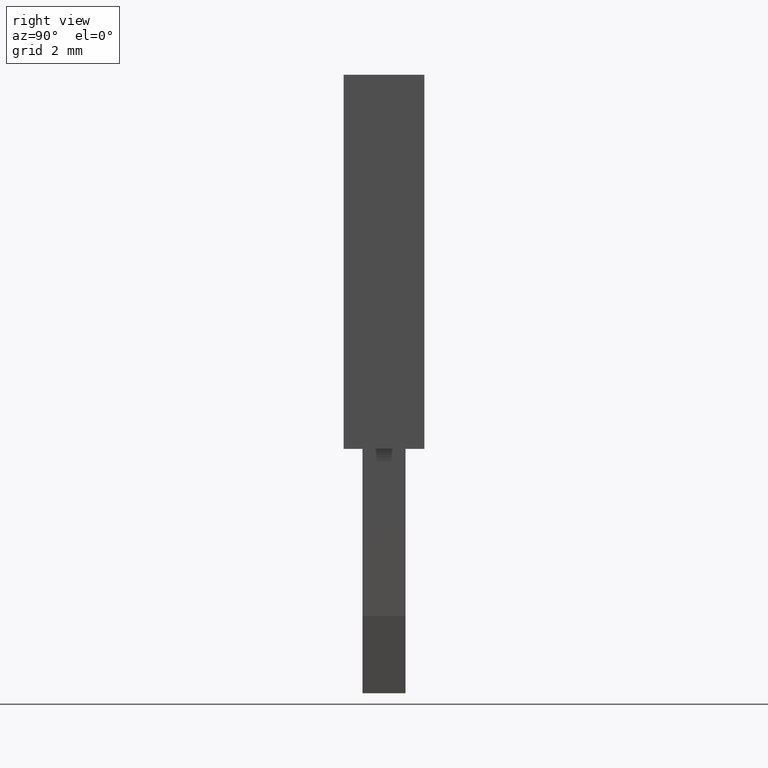
[diagram: clean part render]
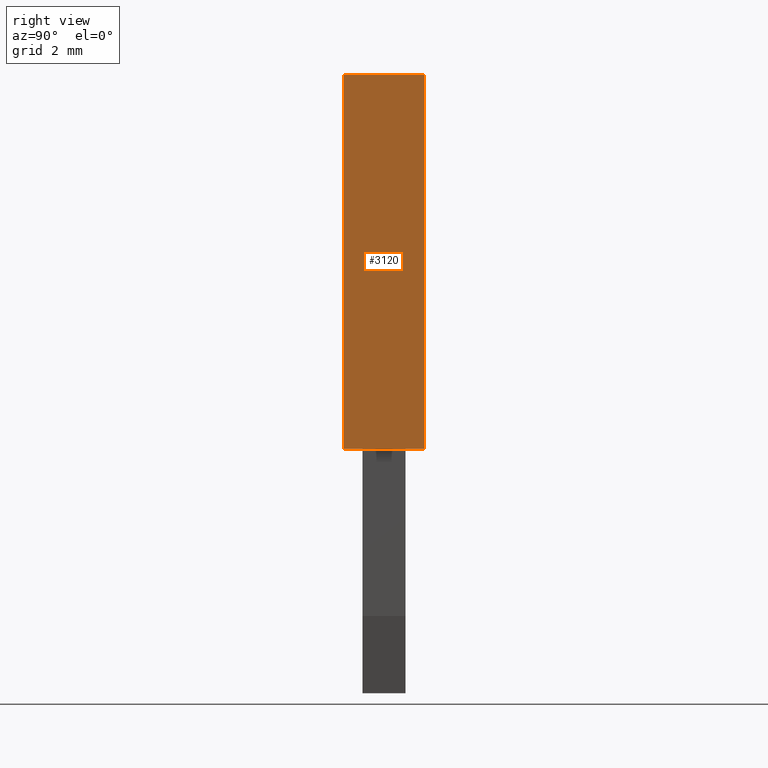
[diagram: same view with one face highlighted and labeled with its STEP entity id]
A machine part, right view. The second image highlights one B-rep face of the part: STEP entity #3120.
In plain terms, the highlighted planar face has unit normal (1, 0, -0).
Its self-contained STEP definition (entity closure, byte-faithful):
#440=CARTESIAN_POINT('',(2.60716722168536,-22.7749999999985,
44.1599999999987));
#450=VERTEX_POINT('',#440);
#500=CARTESIAN_POINT('',(2.60716722168536,-12.005123999997,
44.1599999999987));
#510=DIRECTION('',(0.,-1.,0.));
#520=VECTOR('',#510,1.);
#530=LINE('',#500,#520);
#540=CARTESIAN_POINT('',(2.60716722168536,-8.87499999999744,
44.1599999999987));
#550=VERTEX_POINT('',#540);
#560=EDGE_CURVE('',#550,#450,#530,.T.);
#2230=CARTESIAN_POINT('',(5.60716722168537,-8.87499999999744,
44.1599999999987));
#2240=VERTEX_POINT('',#2230);
#2270=CARTESIAN_POINT('',(5.60716722168536,-12.005123999997,
44.1599999999987));
#2280=DIRECTION('',(0.,1.,0.));
#2290=VECTOR('',#2280,1.);
#2300=LINE('',#2270,#2290);
#2310=CARTESIAN_POINT('',(5.60716722168537,-22.7749999999985,
44.1599999999987));
#2320=VERTEX_POINT('',#2310);
#2330=EDGE_CURVE('',#2320,#2240,#2300,.T.);
#2910=CARTESIAN_POINT('',(5.60716722168536,-22.4749999999974,
44.1599999999987));
#2920=DIRECTION('',(-0.,-0.,-1.));
#2930=DIRECTION('',(0.,-1.,0.));
#2940=AXIS2_PLACEMENT_3D('',#2910,#2920,#2930);
#2950=PLANE('',#2940);
#2960=CARTESIAN_POINT('',(5.60716722168535,-22.7749999999985,
44.1599999999987));
#2970=DIRECTION('',(-1.,-3.56818802108822E-17,0.));
#2980=VECTOR('',#2970,1.);
#2990=LINE('',#2960,#2980);
#3000=EDGE_CURVE('',#2320,#450,#2990,.T.);
#3010=ORIENTED_EDGE('',*,*,#3000,.T.);
#3020=ORIENTED_EDGE('',*,*,#2330,.F.);
#3030=CARTESIAN_POINT('',(5.60716722168535,-8.87499999999744,
44.1599999999987));
#3040=DIRECTION('',(1.,0.,0.));
#3050=VECTOR('',#3040,1.);
#3060=LINE('',#3030,#3050);
#3070=EDGE_CURVE('',#550,#2240,#3060,.T.);
#3080=ORIENTED_EDGE('',*,*,#3070,.T.);
#3090=ORIENTED_EDGE('',*,*,#560,.F.);
#3100=EDGE_LOOP('',(#3090,#3080,#3020,#3010));
#3110=FACE_OUTER_BOUND('',#3100,.T.);
#3120=ADVANCED_FACE('',(#3110),#2950,.T.);